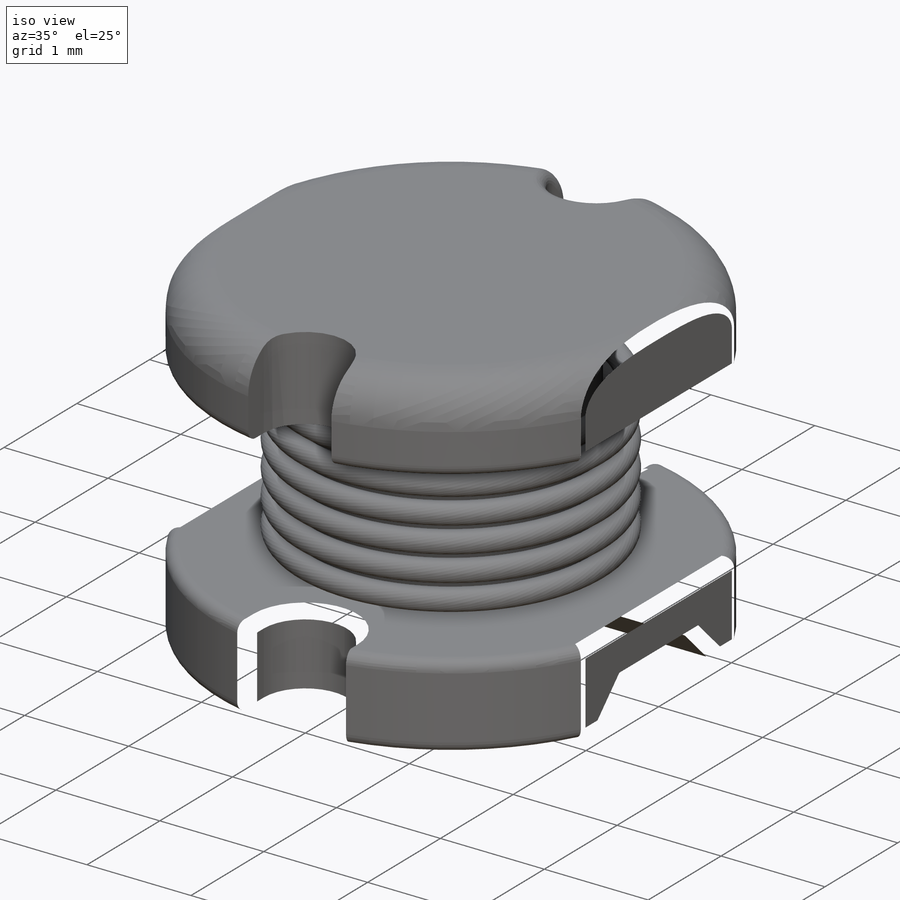
[diagram: iso view]
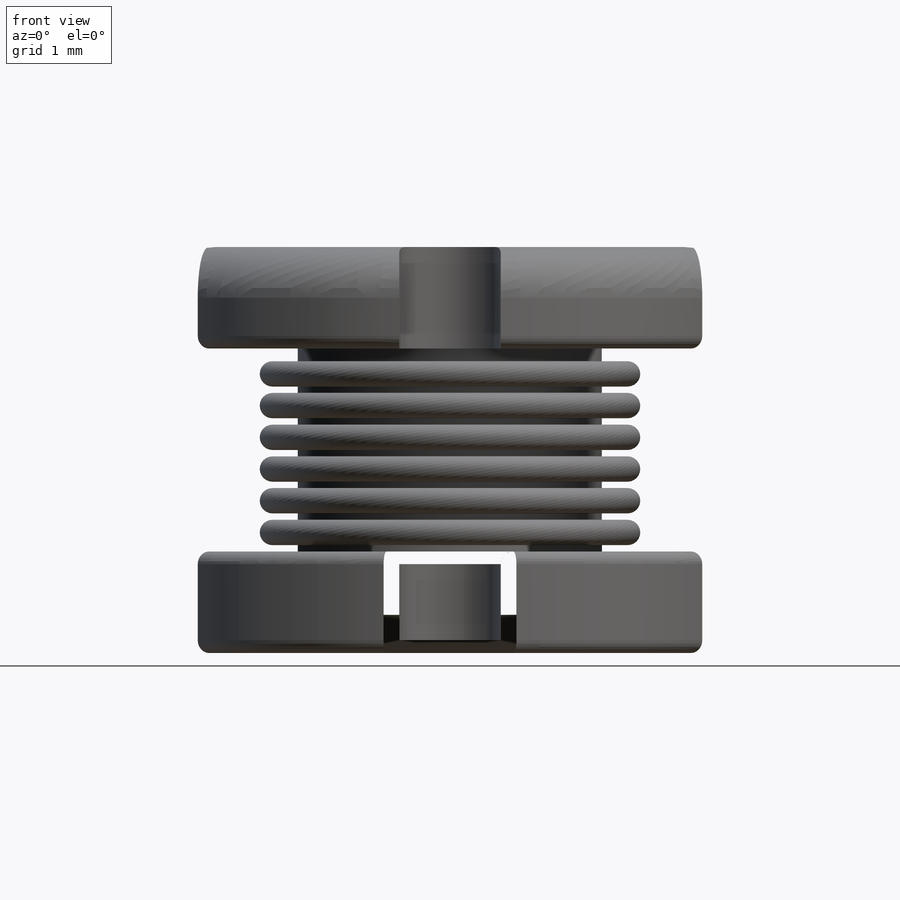
[diagram: front view]
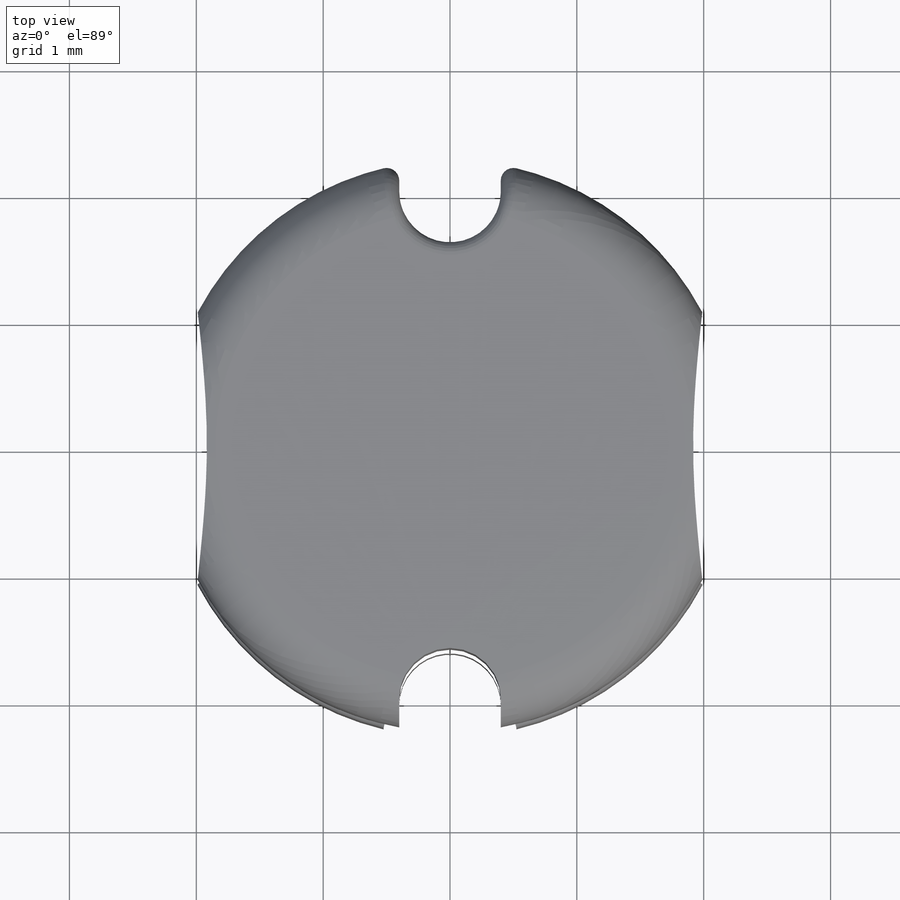
[diagram: top view]
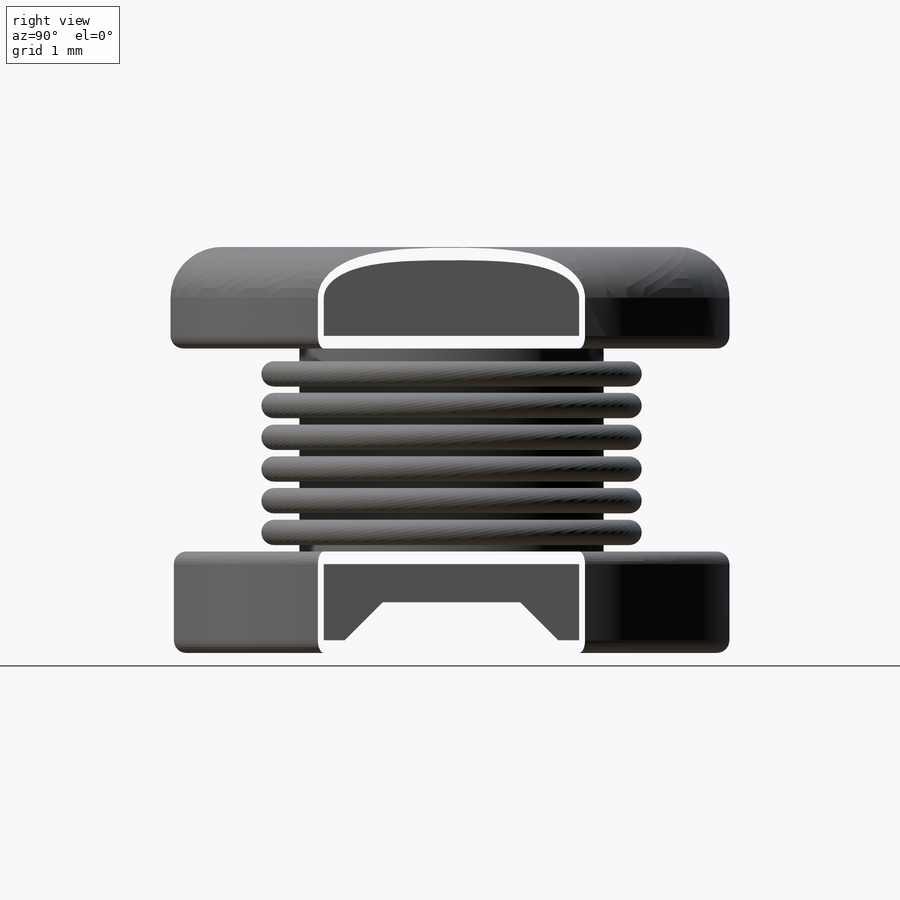
[diagram: right view]
SOLIDWORKS PART (.sldprt)
format: sldprt  version: not decoded by parser v0  size: 826,368 bytes
history: native  units: mm
features: sketch x5, cut_extrude x3, revolve x2, material x1, fillet x1 (+12 scaffold rows collapsed)
feature tree (24):
  scaffold x12  (default folders/planes/origin — collapsed)
  material  "Material <not specified>"
  sketch  "Sketch1"  dims[D6=0.4mm D7=0.1mm D1=3.2mm D2=2.25mm D3=0.8mm D4=0.8mm D5=1.2mm]
  revolve  "Revolve1"  Angle=360deg
  sketch  "Sketch2"  dims[D1=4.0mm D2=0.8mm D3=6.0mm]
  cut_extrude  "Cut-Extrude1"  [1 undecoded]
  sketch  "Sketch3"  dims[c1.D1=0.2mm c1.D4=0.5mm c1.D5=0.5mm c1.D7=0.5mm c1.D8=0.2mm c1.D2=0.25mm c1.D3=0.25mm c2.D4=0.25mm c2.D5=0.25mm c2.D6=0.15mm c2.D7=1.4mm c2.D8=0.25mm]
  revolve  "Revolve2"  Angle=360deg
  sketch  "Sketch4"  dims[c1.D1=1.0mm c1.D2=0.3mm c1.D3=1.0mm c1.D4=~1.215155mm c2.D4=45.0deg]
  cut_extrude  "Cut-Extrude2"  Depth=12mm
  sketch  "Sketch5"  dims[D1=4.0mm D2=5.0mm D3=5.0mm D4=6.0mm]
  cut_extrude  "Cut-Extrude3"  [1 undecoded]
  fillet  "Fillet1"  Radius=0.1mm
decode coverage: 9 of 11 modeling features carry decoded parameters
note: ~ marks probable driven/reference dimensions
note: 2 parameter values undecoded
note: suppression state not decoded; provenance and decode notes live in map.json
